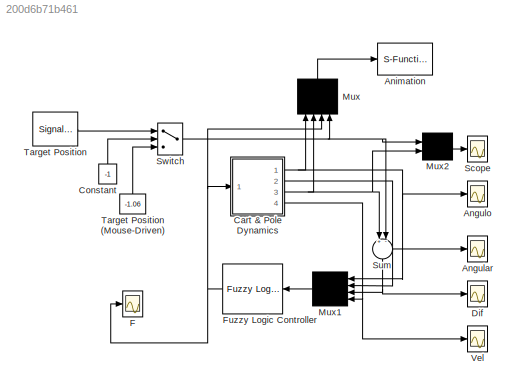
MODEL slx_200d6b71b461
KIND model
CONFIG AbsTol = 1e-6
CONFIG EnableMultiTasking = off
CONFIG FixedStep = .01
CONFIG MaxStep = 0.1
CONFIG MinStep = auto
CONFIG PreLoadFcn = initcpdoc
CONFIG RelTol = 1e-3
CONFIG SampleTimeConstraint = Unconstrained
CONFIG Solver = ode5
CONFIG SolverName = ode5
CONFIG StartTime = 0.0
CONFIG StopTime = 1000
BLOCK [Scope] Angular
  Floating = off
  NumInputPorts = 1
  Ports = [1]
  ScopeSpecificationString = Simulink.scopes.TimeScopeBlockCfg('CurrentConfiguration', extmgr.ConfigurationSet(extmgr.Configuration('Core','General UI',true),extmgr.Configuration('Core','Source UI',true),extmgr.Configuration('Sources','WiredSimulink',true,'DataLoggingSaveFormat','Array','DataLoggingLimitDataPoints',true,'DataLoggingDecimation','1','DataLoggingDecimateData',true,'DataLoggingVariableName','ScopeData2'),extmgr.C...<+1752ch>
BLOCK [Scope] Angulo
  Floating = off
  NumInputPorts = 1
  Ports = [1]
  ScopeSpecificationString = Simulink.scopes.TimeScopeBlockCfg('CurrentConfiguration', extmgr.ConfigurationSet(extmgr.Configuration('Core','General UI',true),extmgr.Configuration('Core','Source UI',true),extmgr.Configuration('Sources','WiredSimulink',true,'DataLoggingSaveFormat','Array','DataLoggingLimitDataPoints',true,'DataLoggingDecimation','1','DataLoggingDecimateData',true,'DataLoggingVariableName','ScopeData1'),extmgr.C...<+1752ch>
BLOCK [S-Function] Animation
  EnableBusSupport = off
  FunctionName = animcp
  Ports = [1]
  SFcnIsStateOwnerBlock = off
  SFunctionDeploymentMode = off
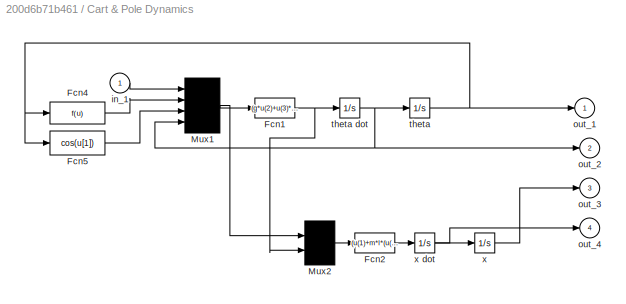
BLOCK [SubSystem] Cart & Pole Dynamics
  Ports = [1, 4]
  RequestExecContextInheritance = off
  ShowPortLabels = none
BLOCK [Fcn] Cart & Pole Dynamics/Fcn1
  Expr = (g*u(2)+u(3)*((-u(1)-m*l*u(4)*u(4)*u(2))/(mc+m)))/(l*(4/3-(m*u(3)*u(3))/(mc+m)))
BLOCK [Fcn] Cart & Pole Dynamics/Fcn2
  Expr = (u(1)+m*l*(u(4)*u(4)*u(2)-u(5)*u(3)))/(mc+m)
BLOCK [Fcn] Cart & Pole Dynamics/Fcn4
BLOCK [Fcn] Cart & Pole Dynamics/Fcn5
  Expr = cos(u[1])
BLOCK [Mux] Cart & Pole Dynamics/Mux1
  Ports = [4, 1]
BLOCK [Mux] Cart & Pole Dynamics/Mux2
  Inputs = [4,1]
  Ports = [2, 1]
BLOCK [Inport] Cart & Pole Dynamics/in_1
  IconDisplay = Port number
BLOCK [Outport] Cart & Pole Dynamics/out_1
  IconDisplay = Port number
  InitialOutput = 0
BLOCK [Outport] Cart & Pole Dynamics/out_2
  IconDisplay = Port number
  InitialOutput = 0
  Port = 2
BLOCK [Outport] Cart & Pole Dynamics/out_3
  IconDisplay = Port number
  InitialOutput = 0
  Port = 3
BLOCK [Outport] Cart & Pole Dynamics/out_4
  IconDisplay = Port number
  InitialOutput = 0
  Port = 4
BLOCK [Integrator] Cart & Pole Dynamics/theta
  InitialCondition = init_cond(1)
  Ports = [1, 1]
BLOCK [Integrator] Cart & Pole Dynamics/theta dot
  InitialCondition = init_cond(2)
  Ports = [1, 1]
BLOCK [Integrator] Cart & Pole Dynamics/x
  InitialCondition = init_cond(3)
  Ports = [1, 1]
BLOCK [Integrator] Cart & Pole Dynamics/x dot
  InitialCondition = init_cond(4)
  Ports = [1, 1]
BLOCK [Constant] Constant
  Value = -1
BLOCK [Scope] Dif
  Floating = off
  NumInputPorts = 1
  Ports = [1]
  ScopeSpecificationString = Simulink.scopes.TimeScopeBlockCfg('CurrentConfiguration', extmgr.ConfigurationSet(extmgr.Configuration('Core','General UI',true),extmgr.Configuration('Core','Source UI',true),extmgr.Configuration('Sources','WiredSimulink',true,'DataLoggingSaveFormat','Array','DataLoggingLimitDataPoints',true,'DataLoggingDecimation','1','DataLoggingDecimateData',true,'DataLoggingVariableName','ScopeData3'),extmgr.C...<+1733ch>
BLOCK [Scope] F
  Floating = off
  NumInputPorts = 1
  Ports = [1]
  ScopeSpecificationString = Simulink.scopes.TimeScopeBlockCfg('CurrentConfiguration', extmgr.ConfigurationSet(extmgr.Configuration('Core','General UI',true),extmgr.Configuration('Core','Source UI',true),extmgr.Configuration('Sources','WiredSimulink',true,'DataLoggingSaveFormat','Array','DataLoggingLimitDataPoints',true,'DataLoggingDecimation','1','DataLoggingDecimateData',true,'DataLoggingVariableName','ScopeData4'),extmgr.C...<+1752ch>
BLOCK [Reference] Fuzzy Logic Controller  REF=fuzblock/Fuzzy Logic   (lib defined in mdl_858b3b3e7478)
Controller
  Ports = [1, 1]
  SourceBlock = fuzblock/Fuzzy Logic \nController
  SourceProductBaseCode = FL
  SourceProductName = Fuzzy Logic Toolbox
  SourceType = Fuzzy Inference System
BLOCK [Mux] Mux
  Ports = [4, 1]
BLOCK [Mux] Mux1
  Ports = [4, 1]
BLOCK [Mux] Mux2
  Inputs = 2
  Ports = [2, 1]
BLOCK [Scope] Scope
  Floating = off
  NumInputPorts = 1
  Ports = [1]
  ScopeSpecificationString = Simulink.scopes.TimeScopeBlockCfg('CurrentConfiguration', extmgr.ConfigurationSet(extmgr.Configuration('Core','General UI',true),extmgr.Configuration('Core','Source UI',true),extmgr.Configuration('Sources','WiredSimulink',true,'DataLoggingSaveFormat','Array','DataLoggingLimitDataPoints',true,'DataLoggingDecimation','1','DataLoggingDecimateData',true),extmgr.Configuration('Visuals','Time Domain',tr...<+1722ch>
BLOCK [Sum] Sum
  Inputs = +-
  Ports = [2, 1]
BLOCK [Switch] Switch
BLOCK [SignalGenerator] Target Position
  Amplitude = 1.500000
  Frequency = 0.628320
  Ports = [0, 1]
  Units = rad/sec
  WaveForm = square
BLOCK [Constant] Target Position (Mouse-Driven)
  Value = -1.06
BLOCK [Scope] Vel
  Floating = off
  NumInputPorts = 1
  Ports = [1]
  ScopeSpecificationString = Simulink.scopes.TimeScopeBlockCfg('CurrentConfiguration', extmgr.ConfigurationSet(extmgr.Configuration('Core','General UI',true),extmgr.Configuration('Core','Source UI',true),extmgr.Configuration('Sources','WiredSimulink',true,'DataLoggingSaveFormat','Array','DataLoggingLimitDataPoints',true,'DataLoggingDecimation','1','DataLoggingDecimateData',true,'DataLoggingVariableName','ScopeData5'),extmgr.C...<+1752ch>
NET Cart & Pole Dynamics/Fcn1:1 -> Cart & Pole Dynamics/Mux2:2, Cart & Pole Dynamics/theta dot:1
LINE Cart & Pole Dynamics/Fcn2:1 -> Cart & Pole Dynamics/x dot:1
LINE Cart & Pole Dynamics/Fcn4:1 -> Cart & Pole Dynamics/Mux1:2
LINE Cart & Pole Dynamics/Fcn5:1 -> Cart & Pole Dynamics/Mux1:3
NET Cart & Pole Dynamics/Mux1:1 -> Cart & Pole Dynamics/Fcn1:1, Cart & Pole Dynamics/Mux2:1
LINE Cart & Pole Dynamics/Mux2:1 -> Cart & Pole Dynamics/Fcn2:1
LINE Cart & Pole Dynamics/in_1:1 -> Cart & Pole Dynamics/Mux1:1
NET Cart & Pole Dynamics/theta dot:1 -> Cart & Pole Dynamics/Mux1:4, Cart & Pole Dynamics/out_2:1, Cart & Pole Dynamics/theta:1
NET Cart & Pole Dynamics/theta:1 -> Cart & Pole Dynamics/Fcn4:1, Cart & Pole Dynamics/Fcn5:1, Cart & Pole Dynamics/out_1:1
NET Cart & Pole Dynamics/x dot:1 -> Cart & Pole Dynamics/out_4:1, Cart & Pole Dynamics/x:1
LINE Cart & Pole Dynamics/x:1 -> Cart & Pole Dynamics/out_3:1
NET Cart & Pole Dynamics:1 -> Angulo:1, Mux1:1, Mux:1
NET Cart & Pole Dynamics:2 -> Angular:1, Mux1:2
NET Cart & Pole Dynamics:3 -> Mux2:2, Mux:2, Sum:1
NET Cart & Pole Dynamics:4 -> Mux1:4, Vel:1
LINE Constant:1 -> Switch:2
NET Fuzzy Logic Controller:1 -> Cart & Pole Dynamics:1, F:1, Mux:3
LINE Mux1:1 -> Fuzzy Logic Controller:1
LINE Mux2:1 -> Scope:1
LINE Mux:1 -> Animation:1
NET Sum:1 -> Dif:1, Mux1:3
NET Switch:1 -> Mux2:1, Mux:4, Sum:2
LINE Target Position (Mouse-Driven):1 -> Switch:3
LINE Target Position:1 -> Switch:1
note: NET lines group one-source signal fan-out (src -> all destinations, sorted); 1:1 wires keep LINE
